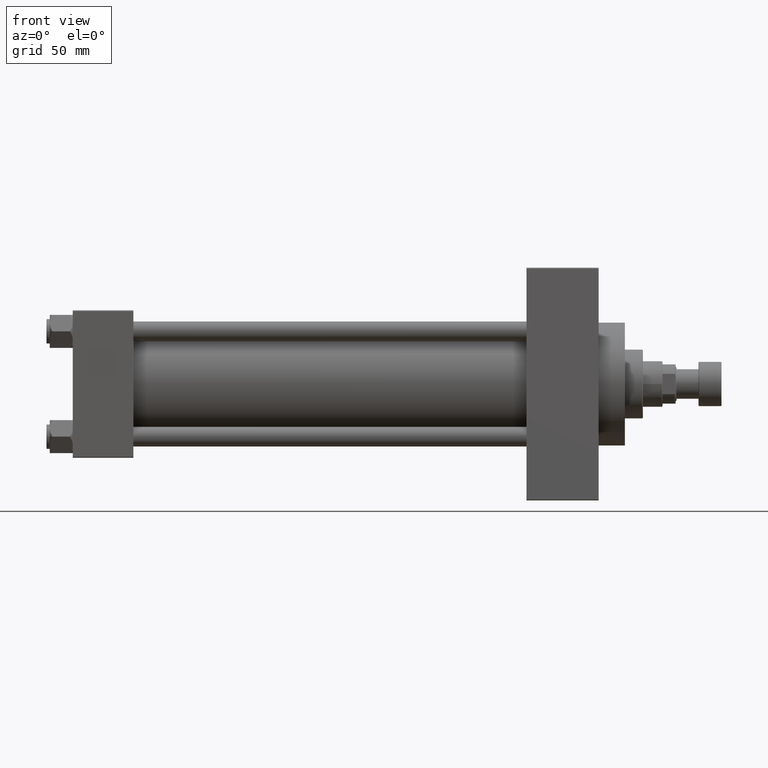
[diagram: clean part render]
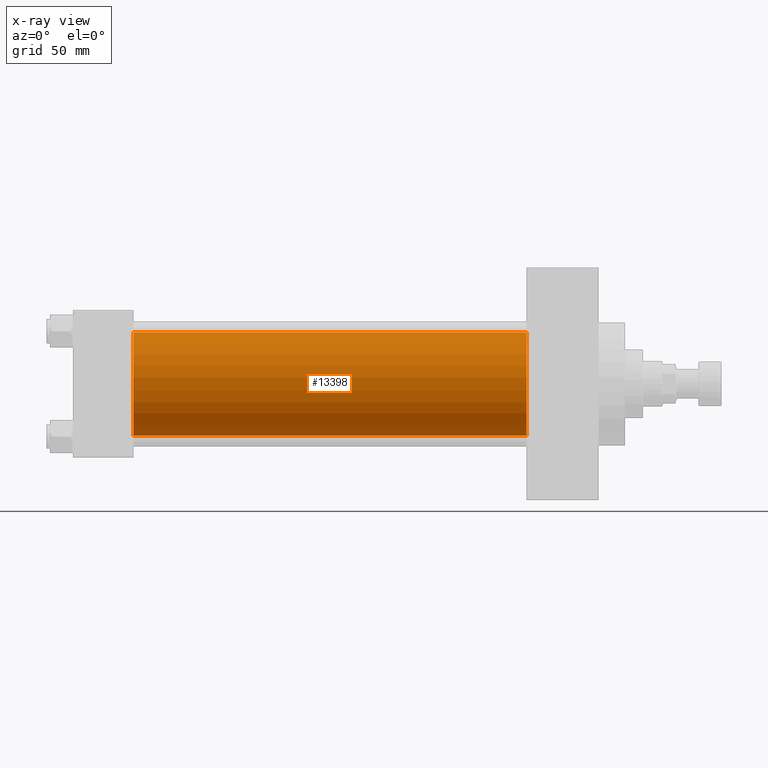
[diagram: x-ray — body ghosted, one internal face saturated and labeled with its STEP entity id]
A machine part, front view, then the same camera in x-ray: the body is ghosted and one INTERNAL B-rep face — a face not visible from any outside direction — is saturated and labeled: STEP entity #13398.
In plain terms, the highlighted cylindrical surface (partial cylindrical patch) has radius 31.5 mm, axis along (-1, -0, -0).
Its self-contained STEP definition (entity closure, byte-faithful):
#1056 = CARTESIAN_POINT ( 'NONE',  ( 276.9999999999999432, -2.602085213965210642E-15, 0.000000000000000000 ) ) ;
#2055 = CIRCLE ( 'NONE', #29318, 31.50000000000000000 ) ;
#4282 = VERTEX_POINT ( 'NONE', #6731 ) ;
#5651 = VECTOR ( 'NONE', #14359, 1000.000000000000000 ) ;
#6224 = DIRECTION ( 'NONE',  ( 0.000000000000000000, 0.000000000000000000, -1.000000000000000000 ) ) ;
#6725 = CARTESIAN_POINT ( 'NONE',  ( 276.9999999999999432, -2.602085213965210642E-15, 0.000000000000000000 ) ) ;
#6731 = CARTESIAN_POINT ( 'NONE',  ( 276.9999999999999432, 1.255552203348951850E-15, -31.50000000000000000 ) ) ;
#6803 = EDGE_CURVE ( 'NONE', #4282, #28459, #43652, .T. ) ;
#7552 = ORIENTED_EDGE ( 'NONE', *, *, #16684, .T. ) ;
#10504 = VECTOR ( 'NONE', #29494, 1000.000000000000000 ) ;
#13293 = AXIS2_PLACEMENT_3D ( 'NONE', #1056, #31715, #35751 ) ;
#13385 = LINE ( 'NONE', #28722, #5651 ) ;
#13390 = VERTEX_POINT ( 'NONE', #24202 ) ;
#13398 = ADVANCED_FACE ( 'NONE', ( #39536 ), #16373, .F. ) ;
#14359 = DIRECTION ( 'NONE',  ( -1.000000000000000000, -0.000000000000000000, -0.000000000000000000 ) ) ;
#16287 = AXIS2_PLACEMENT_3D ( 'NONE', #47755, #35428, #27870 ) ;
#16373 = CYLINDRICAL_SURFACE ( 'NONE', #13293, 31.50000000000000000 ) ;
#16684 = EDGE_CURVE ( 'NONE', #28022, #4282, #2055, .T. ) ;
#18401 = ORIENTED_EDGE ( 'NONE', *, *, #37236, .F. ) ;
#21052 = ORIENTED_EDGE ( 'NONE', *, *, #27430, .F. ) ;
#21473 = CARTESIAN_POINT ( 'NONE',  ( 276.9999999999999432, 1.255552203348951850E-15, -31.50000000000000000 ) ) ;
#24202 = CARTESIAN_POINT ( 'NONE',  ( 37.00000000000000000, -2.602085213965210642E-15, 31.50000000000000000 ) ) ;
#24355 = CARTESIAN_POINT ( 'NONE',  ( 276.9999999999999432, -2.602085213965210642E-15, 31.50000000000000000 ) ) ;
#27198 = EDGE_LOOP ( 'NONE', ( #7552, #47394, #18401, #21052 ) ) ;
#27430 = EDGE_CURVE ( 'NONE', #28022, #13390, #13385, .T. ) ;
#27870 = DIRECTION ( 'NONE',  ( 0.000000000000000000, 0.000000000000000000, -1.000000000000000000 ) ) ;
#28022 = VERTEX_POINT ( 'NONE', #24355 ) ;
#28459 = VERTEX_POINT ( 'NONE', #29463 ) ;
#28722 = CARTESIAN_POINT ( 'NONE',  ( 276.9999999999999432, -2.602085213965210642E-15, 31.50000000000000000 ) ) ;
#29318 = AXIS2_PLACEMENT_3D ( 'NONE', #6725, #44967, #6224 ) ;
#29463 = CARTESIAN_POINT ( 'NONE',  ( 37.00000000000000000, 1.255552203348951850E-15, -31.50000000000000000 ) ) ;
#29494 = DIRECTION ( 'NONE',  ( -1.000000000000000000, -0.000000000000000000, -0.000000000000000000 ) ) ;
#31715 = DIRECTION ( 'NONE',  ( -1.000000000000000000, -0.000000000000000000, -0.000000000000000000 ) ) ;
#35428 = DIRECTION ( 'NONE',  ( 1.000000000000000000, 0.000000000000000000, 0.000000000000000000 ) ) ;
#35751 = DIRECTION ( 'NONE',  ( 0.000000000000000000, 0.000000000000000000, 1.000000000000000000 ) ) ;
#37236 = EDGE_CURVE ( 'NONE', #13390, #28459, #43648, .T. ) ;
#39536 = FACE_OUTER_BOUND ( 'NONE', #27198, .T. ) ;
#43648 = CIRCLE ( 'NONE', #16287, 31.50000000000000000 ) ;
#43652 = LINE ( 'NONE', #21473, #10504 ) ;
#44967 = DIRECTION ( 'NONE',  ( 1.000000000000000000, 0.000000000000000000, 0.000000000000000000 ) ) ;
#47394 = ORIENTED_EDGE ( 'NONE', *, *, #6803, .T. ) ;
#47755 = CARTESIAN_POINT ( 'NONE',  ( 37.00000000000000000, -2.602085213965210642E-15, 0.000000000000000000 ) ) ;